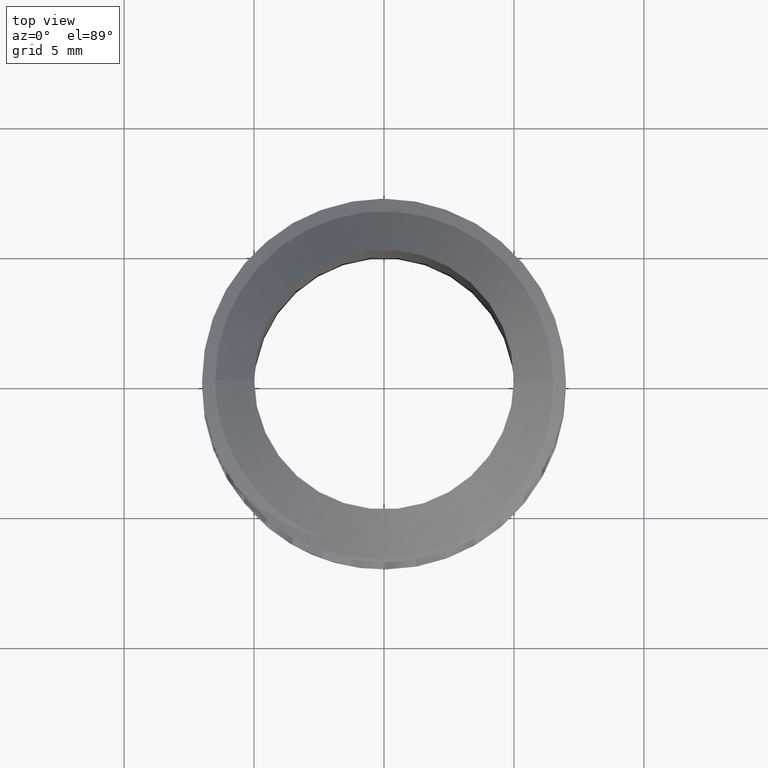
[diagram: clean part render]
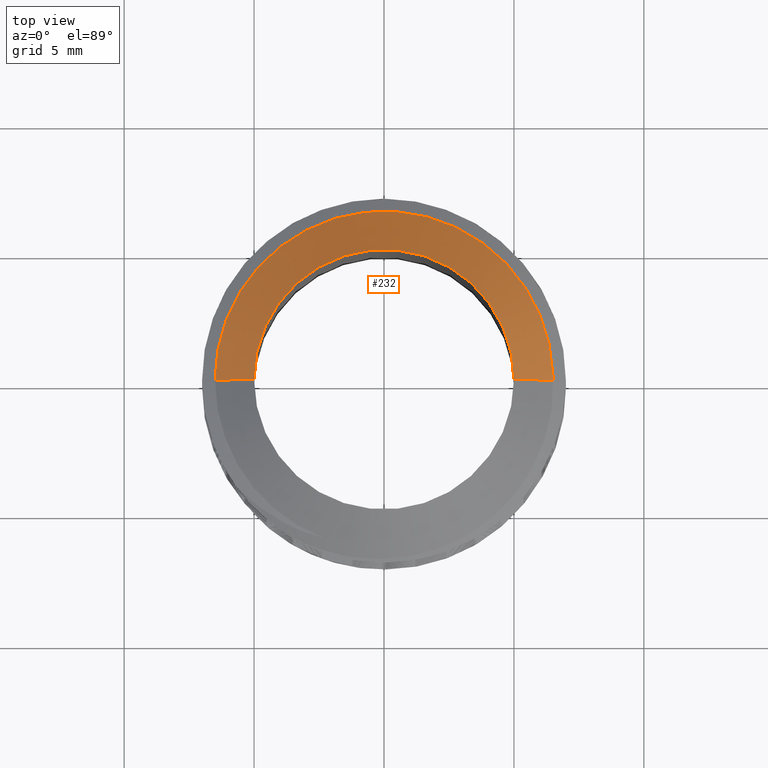
[diagram: same view with one face highlighted and labeled with its STEP entity id]
A machine part, top view. The second image highlights one B-rep face of the part: STEP entity #232.
In plain terms, the highlighted conical surface has half-angle 45 deg.
Its self-contained STEP definition (entity closure, byte-faithful):
#13 = EDGE_LOOP ( 'NONE', ( #1162, #1163, #1164, #1165, #1166 ) ) ;
#62 = FACE_OUTER_BOUND ( 'NONE', #13, .T. ) ;
#63 = CONICAL_SURFACE ( 'NONE', #337, 4.999999999999964500, 0.7853981633974530500 ) ;
#86 = CIRCLE ( 'NONE', #344, 5.000000000000000000 ) ;
#91 = CIRCLE ( 'NONE', #346, 6.499999999999978700 ) ;
#93 = LINE ( 'NONE', #1483, #94 ) ;
#94 = VECTOR ( 'NONE', #1484, 1000.000000000000000 ) ;
#95 = LINE ( 'NONE', #1498, #97 ) ;
#97 = VECTOR ( 'NONE', #1499, 1000.000000000000000 ) ;
#232 = ADVANCED_FACE ( 'NONE', ( #62 ), #63, .T. ) ;
#247 = EDGE_CURVE ( 'NONE', #1135, #1142, #1223, .T. ) ;
#256 = EDGE_CURVE ( 'NONE', #1152, #1095, #86, .T. ) ;
#267 = EDGE_CURVE ( 'NONE', #1134, #1135, #91, .T. ) ;
#269 = EDGE_CURVE ( 'NONE', #1152, #1134, #93, .T. ) ;
#272 = EDGE_CURVE ( 'NONE', #1095, #1142, #95, .T. ) ;
#337 = AXIS2_PLACEMENT_3D ( 'NONE', #2294, #2268, #2253 ) ;
#344 = AXIS2_PLACEMENT_3D ( 'NONE', #1267, #1355, #1470 ) ;
#346 = AXIS2_PLACEMENT_3D ( 'NONE', #1478, #1479, #1480 ) ;
#986 = CARTESIAN_POINT ( 'NONE',  ( 4.999999999999999100, 7.347880794884123700E-016, 0.0000000000000000000 ) ) ;
#1023 = CARTESIAN_POINT ( 'NONE',  ( -6.499999999999978700, 0.0000000000000000000, -1.500000000000000000 ) ) ;
#1024 = CARTESIAN_POINT ( 'NONE',  ( 6.496526076532441100, 0.2124827920270279900, -1.499999999999981100 ) ) ;
#1030 = CARTESIAN_POINT ( 'NONE',  ( 6.506944958466514900, 1.606024264505477500E-011, -1.506944958466536600 ) ) ;
#1039 = CARTESIAN_POINT ( 'NONE',  ( -5.000000000000000000, 0.0000000000000000000, 0.0000000000000000000 ) ) ;
#1095 = VERTEX_POINT ( 'NONE', #986 ) ;
#1134 = VERTEX_POINT ( 'NONE', #1023 ) ;
#1135 = VERTEX_POINT ( 'NONE', #1024 ) ;
#1142 = VERTEX_POINT ( 'NONE', #1030 ) ;
#1152 = VERTEX_POINT ( 'NONE', #1039 ) ;
#1162 = ORIENTED_EDGE ( 'NONE', *, *, #256, .T. ) ;
#1163 = ORIENTED_EDGE ( 'NONE', *, *, #272, .T. ) ;
#1164 = ORIENTED_EDGE ( 'NONE', *, *, #247, .F. ) ;
#1165 = ORIENTED_EDGE ( 'NONE', *, *, #267, .F. ) ;
#1166 = ORIENTED_EDGE ( 'NONE', *, *, #269, .F. ) ;
#1223 = B_SPLINE_CURVE_WITH_KNOTS ( 'NONE', 3,
 ( #1442, #1441, #1440, #1371 ),
 .UNSPECIFIED., .F., .F.,
 ( 4, 4 ),
 ( 5.065907821359460100E-017, 0.0002103929179776574000 ),
 .UNSPECIFIED. ) ;
#1267 = CARTESIAN_POINT ( 'NONE',  ( 0.0000000000000000000, 0.0000000000000000000, 0.0000000000000000000 ) ) ;
#1355 = DIRECTION ( 'NONE',  ( 0.0000000000000000000, 0.0000000000000000000, -1.000000000000000000 ) ) ;
#1371 = CARTESIAN_POINT ( 'NONE',  ( 6.506944958466514900, 1.606024264505477500E-011, -1.506944958466536600 ) ) ;
#1440 = CARTESIAN_POINT ( 'NONE',  ( 6.504658009494725900, 0.07070571762249577800, -1.504658009494921800 ) ) ;
#1441 = CARTESIAN_POINT ( 'NONE',  ( 6.501191117901088400, 0.1415326928952050900, -1.502343213498696000 ) ) ;
#1442 = CARTESIAN_POINT ( 'NONE',  ( 6.496526076532441100, 0.2124827920270279900, -1.499999999999981100 ) ) ;
#1470 = DIRECTION ( 'NONE',  ( -1.000000000000000000, 0.0000000000000000000, 0.0000000000000000000 ) ) ;
#1478 = CARTESIAN_POINT ( 'NONE',  ( 0.0000000000000000000, 0.0000000000000000000, -1.500000000000000000 ) ) ;
#1479 = DIRECTION ( 'NONE',  ( -0.0000000000000000000, -0.0000000000000000000, -1.000000000000000000 ) ) ;
#1480 = DIRECTION ( 'NONE',  ( 1.000000000000000000, 0.0000000000000000000, 0.0000000000000000000 ) ) ;
#1483 = CARTESIAN_POINT ( 'NONE',  ( -4.999999999999964500, 0.0000000000000000000, 0.0000000000000000000 ) ) ;
#1484 = DIRECTION ( 'NONE',  ( -0.7071067811865507900, 0.0000000000000000000, -0.7071067811865441300 ) ) ;
#1498 = CARTESIAN_POINT ( 'NONE',  ( 4.999999999999964500, 6.123233995736722900E-016, 0.0000000000000000000 ) ) ;
#1499 = DIRECTION ( 'NONE',  ( 0.7071067811865507900, 8.659560562354974800E-017, -0.7071067811865441300 ) ) ;
#2253 = DIRECTION ( 'NONE',  ( -1.000000000000000000, 0.0000000000000000000, 0.0000000000000000000 ) ) ;
#2268 = DIRECTION ( 'NONE',  ( 0.0000000000000000000, 0.0000000000000000000, -1.000000000000000000 ) ) ;
#2294 = CARTESIAN_POINT ( 'NONE',  ( 0.0000000000000000000, 0.0000000000000000000, 0.0000000000000000000 ) ) ;